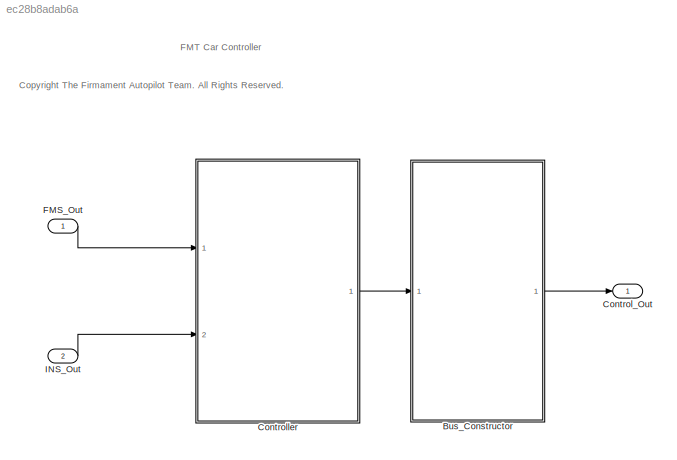
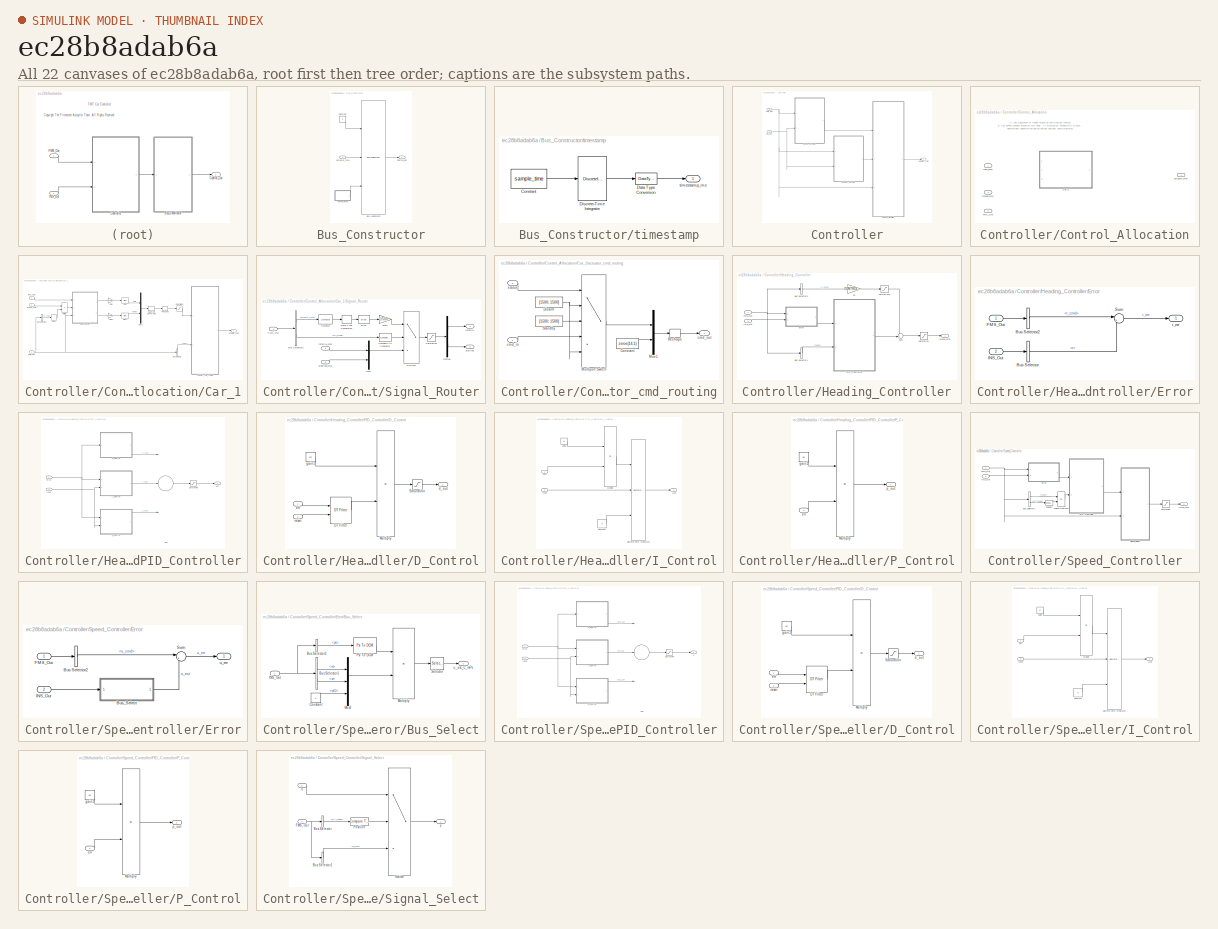
[diagram: thumbnail index - all 22 canvases of the model, root first then tree order]
MODEL slx_ec28b8adab6a
KIND model
CONFIG AbsTol = auto
CONFIG EnableMultiTasking = off
CONFIG FixedStep = control_dt
CONFIG MaxStep = auto
CONFIG MinStep = auto
CONFIG RelTol = 1e-3
CONFIG SampleTimeConstraint = Unconstrained
CONFIG Solver = FixedStepDiscrete
CONFIG SolverName = FixedStepDiscrete
CONFIG StartTime = 0.0
CONFIG StopTime = 10.0
BLOCK [SubSystem] Bus_Constructor
  Ports = [1, 1]
  RequestExecContextInheritance = off
BLOCK [BusAssignment] Bus_Constructor/Bus Assignment
  AssignedSignals = actuator_cmd,timestamp
  Ports = [3, 1]
BLOCK [Constant] Bus_Constructor/Constant
  OutDataTypeStr = Bus: Control_Out_Bus
  Value = 0
BLOCK [Outport] Bus_Constructor/Control_Out
  IconDisplay = Port number
BLOCK [Inport] Bus_Constructor/actuator_cmd
  IconDisplay = Port number
BLOCK [SubSystem] Bus_Constructor/timestamp
  Ports = [0, 1]
  RequestExecContextInheritance = off
BLOCK [Constant] Bus_Constructor/timestamp/Constant
  Value = sample_time
BLOCK [DataTypeConversion] Bus_Constructor/timestamp/Data Type Conversion
  OutDataTypeStr = uint32
  RndMeth = Floor
  SaturateOnIntegerOverflow = off
BLOCK [DiscreteIntegrator] Bus_Constructor/timestamp/Discrete-Time Integrator
  ICPrevOutput = DiscIntNeverNeededParam
  ICPrevScaledInput = DiscIntNeverNeededParam
  InitialConditionSetting = Auto
  IntegratorMethod = Accumulation: Forward Euler
  Ports = [1, 1]
  SampleTime = -1
BLOCK [Outport] Bus_Constructor/timestamp/timestamp_ms
  IconDisplay = Port number
BLOCK [Outport] Control_Out
  IconDisplay = Port number
  OutDataTypeStr = Bus: Control_Out_Bus
BLOCK [SubSystem] Controller
  Ports = [2, 1]
  RequestExecContextInheritance = off
BLOCK [SubSystem] Controller/Control_Allocation
  GeneratePreprocessorConditionals = on
  Ports = [3, 1]
  RequestExecContextInheritance = off
  Variant = on
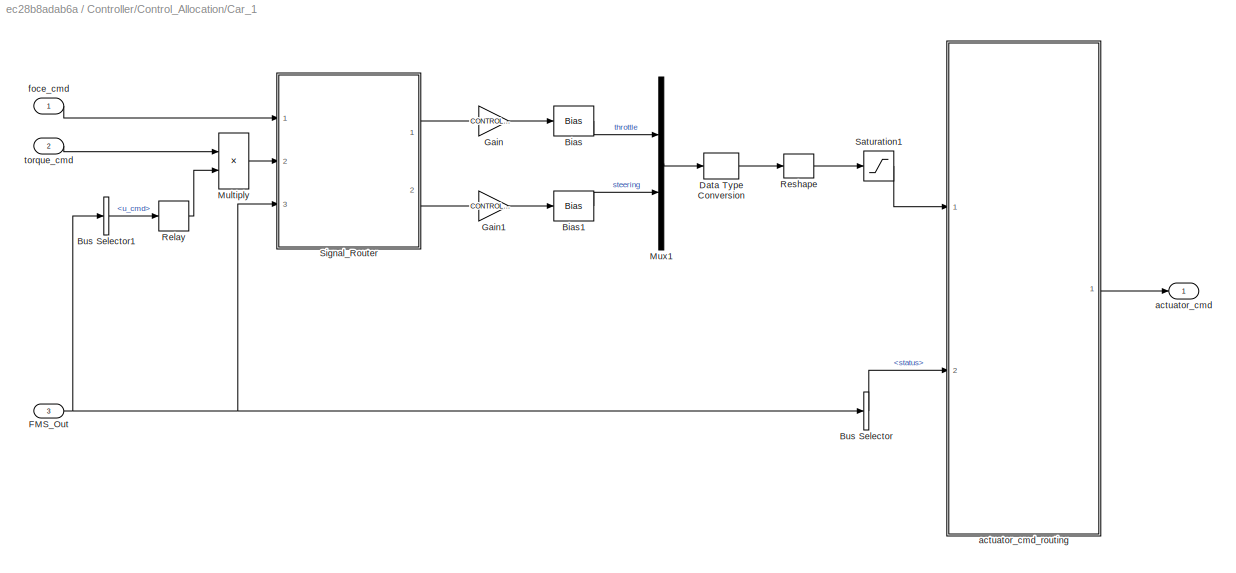
BLOCK [SubSystem] Controller/Control_Allocation/Car_1
  Ports = [3, 1]
  RequestExecContextInheritance = off
  TreatAsAtomicUnit = on
  VariantControl = AIRFRAME==1
BLOCK [Bias] Controller/Control_Allocation/Car_1/Bias
  Bias = CONTROL_PARAM.THROTTLE_BIAS
  SaturateOnIntegerOverflow = off
BLOCK [Bias] Controller/Control_Allocation/Car_1/Bias1
  Bias = CONTROL_PARAM.SERVO_BIAS
  SaturateOnIntegerOverflow = off
BLOCK [BusSelector] Controller/Control_Allocation/Car_1/Bus Selector
  OutputAsBus = off
  OutputSignals = status
  Ports = [1, 1]
BLOCK [BusSelector] Controller/Control_Allocation/Car_1/Bus Selector1
  OutputAsBus = off
  OutputSignals = u_cmd
  Ports = [1, 1]
BLOCK [DataTypeConversion] Controller/Control_Allocation/Car_1/Data Type Conversion
  OutDataTypeStr = uint16
  RndMeth = Floor
  SaturateOnIntegerOverflow = off
BLOCK [Inport] Controller/Control_Allocation/Car_1/FMS_Out
  IconDisplay = Port number
  Port = 3
BLOCK [Gain] Controller/Control_Allocation/Car_1/Gain
  Gain = CONTROL_PARAM.THROTTLE_SCALE
  OutDataTypeStr = single
  ParamDataTypeStr = Inherit: Inherit via internal rule
  SaturateOnIntegerOverflow = off
BLOCK [Gain] Controller/Control_Allocation/Car_1/Gain1
  Gain = CONTROL_PARAM.SERVO_SCALE
  OutDataTypeStr = single
  ParamDataTypeStr = Inherit: Inherit via internal rule
  SaturateOnIntegerOverflow = off
BLOCK [Product] Controller/Control_Allocation/Car_1/Multiply
  InputSameDT = off
  OutDataTypeStr = Inherit: Inherit via internal rule
  Ports = [2, 1]
  RndMeth = Floor
  SaturateOnIntegerOverflow = off
BLOCK [Mux] Controller/Control_Allocation/Car_1/Mux1
  DisplayOption = bar
  Inputs = 2
  Ports = [2, 1]
BLOCK [Relay] Controller/Control_Allocation/Car_1/Relay
  InputProcessing = Elements as channels (sample based)
  OffOutputValue = -1
  OffSwitchValue = -0.2
  OnSwitchValue = 0
BLOCK [Reshape] Controller/Control_Allocation/Car_1/Reshape
  OutputDimensionality = Column vector (2-D)
  Ports = [1, 1]
BLOCK [Saturate] Controller/Control_Allocation/Car_1/Saturation1
  InputPortMap = u0
  LowerLimit = 1000
  Ports = [1, 1]
  UpperLimit = 2000
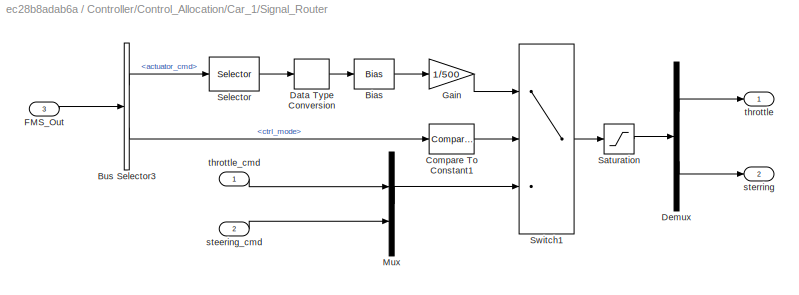
BLOCK [SubSystem] Controller/Control_Allocation/Car_1/Signal_Router
  Ports = [3, 2]
  RequestExecContextInheritance = off
BLOCK [Bias] Controller/Control_Allocation/Car_1/Signal_Router/Bias
  Bias = -1500
  SaturateOnIntegerOverflow = off
BLOCK [BusSelector] Controller/Control_Allocation/Car_1/Signal_Router/Bus Selector3
  OutputAsBus = off
  OutputSignals = actuator_cmd,ctrl_mode
  Ports = [1, 2]
BLOCK [Reference] Controller/Control_Allocation/Car_1/Signal_Router/Compare To Constant1  REF=simulink/Logic and Bit
Operations/Compare
To Constant
  Ports = [1, 1]
  SourceBlock = simulink/Logic and Bit\nOperations/Compare\nTo Constant
  SourceProductBaseCode = SL
  SourceProductName = Simulink
  SourceType = Compare To Constant
BLOCK [DataTypeConversion] Controller/Control_Allocation/Car_1/Signal_Router/Data Type Conversion
  OutDataTypeStr = single
  RndMeth = Floor
  SaturateOnIntegerOverflow = off
BLOCK [Demux] Controller/Control_Allocation/Car_1/Signal_Router/Demux
  DisplayOption = bar
  Outputs = 2
  Ports = [1, 2]
BLOCK [Inport] Controller/Control_Allocation/Car_1/Signal_Router/FMS_Out
  IconDisplay = Port number
  Port = 3
BLOCK [Gain] Controller/Control_Allocation/Car_1/Signal_Router/Gain
  Gain = 1/500
  OutDataTypeStr = Inherit: Inherit via internal rule
  ParamDataTypeStr = Inherit: Inherit via internal rule
  SaturateOnIntegerOverflow = off
BLOCK [Mux] Controller/Control_Allocation/Car_1/Signal_Router/Mux
  DisplayOption = bar
  Inputs = 2
  Ports = [2, 1]
BLOCK [Saturate] Controller/Control_Allocation/Car_1/Signal_Router/Saturation
  InputPortMap = u0
  LowerLimit = -1
  Ports = [1, 1]
  UpperLimit = 1
BLOCK [Selector] Controller/Control_Allocation/Car_1/Signal_Router/Selector
  IndexOptions = Index vector (dialog)
  Indices = [1 2]
  InputPortWidth = 16
  OutputSizes = 1
  Ports = [1, 1]
BLOCK [Switch] Controller/Control_Allocation/Car_1/Signal_Router/Switch1
  Criteria = u2 > Threshold
  InputSameDT = off
  SaturateOnIntegerOverflow = off
BLOCK [Inport] Controller/Control_Allocation/Car_1/Signal_Router/steering_cmd
  IconDisplay = Port number
  Port = 2
BLOCK [Outport] Controller/Control_Allocation/Car_1/Signal_Router/sterring
  IconDisplay = Port number
  Port = 2
BLOCK [Outport] Controller/Control_Allocation/Car_1/Signal_Router/throttle
  IconDisplay = Port number
BLOCK [Inport] Controller/Control_Allocation/Car_1/Signal_Router/throttle_cmd
  IconDisplay = Port number
BLOCK [Outport] Controller/Control_Allocation/Car_1/actuator_cmd
  IconDisplay = Port number
BLOCK [SubSystem] Controller/Control_Allocation/Car_1/actuator_cmd_routing
  Ports = [2, 1]
  RequestExecContextInheritance = off
BLOCK [Constant] Controller/Control_Allocation/Car_1/actuator_cmd_routing/Constant
  OutDataTypeStr = uint16
  Value = zeros(14,1)
  VectorParams1D = off
BLOCK [Constant] Controller/Control_Allocation/Car_1/actuator_cmd_routing/Disarm
  OutDataTypeStr = uint16
  Value = [1500; 1500]
  VectorParams1D = off
BLOCK [MultiPortSwitch] Controller/Control_Allocation/Car_1/actuator_cmd_routing/Multiport Switch
  DataPortForDefault = Additional data port
  DiagnosticForDefault = None
  InputSameDT = off
  Ports = [5, 1]
  SaturateOnIntegerOverflow = off
BLOCK [Mux] Controller/Control_Allocation/Car_1/actuator_cmd_routing/Mux1
  DisplayOption = bar
  Inputs = 2
  Ports = [2, 1]
BLOCK [Reshape] Controller/Control_Allocation/Car_1/actuator_cmd_routing/Reshape
  OutputDimensionality = Customize
  OutputDimensions = [16,1]
  Ports = [1, 1]
BLOCK [Constant] Controller/Control_Allocation/Car_1/actuator_cmd_routing/Standby
  OutDataTypeStr = uint16
  Value = [1500; 1500]
  VectorParams1D = off
BLOCK [Inport] Controller/Control_Allocation/Car_1/actuator_cmd_routing/cmd_in
  IconDisplay = Port number
BLOCK [Outport] Controller/Control_Allocation/Car_1/actuator_cmd_routing/cmd_out
  IconDisplay = Port number
BLOCK [Inport] Controller/Control_Allocation/Car_1/actuator_cmd_routing/status
  IconDisplay = Port number
  Port = 2
BLOCK [Inport] Controller/Control_Allocation/Car_1/foce_cmd
  IconDisplay = Port number
BLOCK [Inport] Controller/Control_Allocation/Car_1/torque_cmd
  IconDisplay = Port number
  Port = 2
BLOCK [Inport] Controller/Control_Allocation/FMS_Out
  IconDisplay = Port number
  Port = 3
BLOCK [Outport] Controller/Control_Allocation/actuator_cmd
  IconDisplay = Port number
BLOCK [Inport] Controller/Control_Allocation/foce_cmd
  IconDisplay = Port number
BLOCK [Inport] Controller/Control_Allocation/torque_cmd
  IconDisplay = Port number
  Port = 2
BLOCK [Inport] Controller/FMS_Out
  IconDisplay = Port number
BLOCK [SubSystem] Controller/Heading_Controller
  Ports = [2, 1]
  RequestExecContextInheritance = off
BLOCK [BusSelector] Controller/Heading_Controller/Bus Selector1
  OutputAsBus = off
  OutputSignals = reset
  Ports = [1, 1]
BLOCK [BusSelector] Controller/Heading_Controller/Bus Selector3
  OutputAsBus = off
  OutputSignals = r_cmd
  Ports = [1, 1]
BLOCK [SubSystem] Controller/Heading_Controller/Error
  Ports = [2, 1]
  RequestExecContextInheritance = off
BLOCK [BusSelector] Controller/Heading_Controller/Error/Bus Selector
  OutputAsBus = off
  OutputSignals = r
  Ports = [1, 1]
BLOCK [BusSelector] Controller/Heading_Controller/Error/Bus Selector2
  OutputAsBus = off
  OutputSignals = r_cmd
  Ports = [1, 1]
BLOCK [Inport] Controller/Heading_Controller/Error/FMS_Out
  IconDisplay = Port number
BLOCK [Inport] Controller/Heading_Controller/Error/INS_Out
  IconDisplay = Port number
  Port = 2
BLOCK [Sum] Controller/Heading_Controller/Error/Sum
  IconShape = round
  InputSameDT = off
  Inputs = |+-
  OutDataTypeStr = Inherit: Inherit via internal rule
  Ports = [2, 1]
  SaturateOnIntegerOverflow = off
BLOCK [Outport] Controller/Heading_Controller/Error/r_err
  IconDisplay = Port number
BLOCK [Gain] Controller/Heading_Controller/FF
  Gain = CONTROL_PARAM.R_FF
  OutDataTypeStr = Inherit: Inherit via internal rule
  ParamDataTypeStr = Inherit: Inherit via internal rule
  SaturateOnIntegerOverflow = off
BLOCK [Inport] Controller/Heading_Controller/FMS_Out
  IconDisplay = Port number
BLOCK [Inport] Controller/Heading_Controller/INS_Out
  IconDisplay = Port number
  Port = 2
BLOCK [SubSystem] Controller/Heading_Controller/PID_Controller
  Ports = [2, 1]
  RequestExecContextInheritance = off
BLOCK [Sum] Controller/Heading_Controller/PID_Controller/Add
  AccumDataTypeStr = Inherit: Same as first input
  InputSameDT = off
  Inputs = +++
  OutDataTypeStr = Inherit: Inherit via internal rule
  Ports = [3, 1]
  SaturateOnIntegerOverflow = off
BLOCK [SubSystem] Controller/Heading_Controller/PID_Controller/D_Control
  Ports = [2, 1]
  RequestExecContextInheritance = off
BLOCK [Reference] Controller/Heading_Controller/PID_Controller/D_Control/DT Filter  REF=FMT_Model_Lib/Filter/DT Filter
  Ports = [2, 1]
  SourceBlock = FMT_Model_Lib/Filter/DT Filter
  SourceProductName = FMT Toolbox
  SourceType = Derivative Tracking Filter
BLOCK [Product] Controller/Heading_Controller/PID_Controller/D_Control/Multiply
  InputSameDT = off
  Ports = [2, 1]
  RndMeth = Floor
  SaturateOnIntegerOverflow = off
BLOCK [Saturate] Controller/Heading_Controller/PID_Controller/D_Control/Saturation
  InputPortMap = u0
  LowerLimit = min_d
  Ports = [1, 1]
  UpperLimit = max_d
BLOCK [Outport] Controller/Heading_Controller/PID_Controller/D_Control/d_out
  IconDisplay = Port number
BLOCK [Inport] Controller/Heading_Controller/PID_Controller/D_Control/err
  IconDisplay = Port number
BLOCK [Constant] Controller/Heading_Controller/PID_Controller/D_Control/gain1
  OutDataTypeStr = single
  Value = kd
BLOCK [Inport] Controller/Heading_Controller/PID_Controller/D_Control/reset
  IconDisplay = Port number
  Port = 2
BLOCK [SubSystem] Controller/Heading_Controller/PID_Controller/I_Control
  Ports = [2, 1]
  RequestExecContextInheritance = off
BLOCK [Constant] Controller/Heading_Controller/PID_Controller/I_Control/Constant
  OutDataTypeStr = single
  Value = 0
BLOCK [DiscreteIntegrator] Controller/Heading_Controller/PID_Controller/I_Control/Discrete-Time Integrator
  ExternalReset = level
  ICPrevOutput = DiscIntNeverNeededParam
  ICPrevScaledInput = DiscIntNeverNeededParam
  InitialConditionSetting = Auto
  InitialConditionSource = external
  LimitOutput = on
  LowerSaturationLimit = min_i
  Ports = [3, 1]
  SampleTime = -1
  UpperSaturationLimit = max_i
BLOCK [Product] Controller/Heading_Controller/PID_Controller/I_Control/Multiply
  InputSameDT = off
  Ports = [2, 1]
  RndMeth = Floor
  SaturateOnIntegerOverflow = off
BLOCK [Inport] Controller/Heading_Controller/PID_Controller/I_Control/err
  IconDisplay = Port number
BLOCK [Constant] Controller/Heading_Controller/PID_Controller/I_Control/gain1
  OutDataTypeStr = single
  Value = ki
BLOCK [Outport] Controller/Heading_Controller/PID_Controller/I_Control/i_out
  IconDisplay = Port number
BLOCK [Inport] Controller/Heading_Controller/PID_Controller/I_Control/reset
  IconDisplay = Port number
  Port = 2
BLOCK [SubSystem] Controller/Heading_Controller/PID_Controller/P_Control
  Ports = [1, 1]
  RequestExecContextInheritance = off
BLOCK [Product] Controller/Heading_Controller/PID_Controller/P_Control/Multiply
  InputSameDT = off
  Ports = [2, 1]
  RndMeth = Floor
  SaturateOnIntegerOverflow = off
BLOCK [Inport] Controller/Heading_Controller/PID_Controller/P_Control/err
  IconDisplay = Port number
BLOCK [Constant] Controller/Heading_Controller/PID_Controller/P_Control/gain1
  OutDataTypeStr = single
  Value = kp
BLOCK [Outport] Controller/Heading_Controller/PID_Controller/P_Control/p_out
  IconDisplay = Port number
BLOCK [Saturate] Controller/Heading_Controller/PID_Controller/Saturation
  InputPortMap = u0
  LowerLimit = -1
  Ports = [1, 1]
  UpperLimit = 1
BLOCK [Inport] Controller/Heading_Controller/PID_Controller/error
  IconDisplay = Port number
BLOCK [Outport] Controller/Heading_Controller/PID_Controller/out
  IconDisplay = Port number
BLOCK [Inport] Controller/Heading_Controller/PID_Controller/reset
  IconDisplay = Port number
  Port = 2
BLOCK [Saturate] Controller/Heading_Controller/Saturation
  InputPortMap = u0
  LowerLimit = -1
  Ports = [1, 1]
  UpperLimit = 1
BLOCK [Saturate] Controller/Heading_Controller/Saturation1
  InputPortMap = u0
  LowerLimit = -0.9
  Ports = [1, 1]
  UpperLimit = 0.9
BLOCK [Sum] Controller/Heading_Controller/Sum
  IconShape = round
  InputSameDT = off
  Inputs = ++|
  OutDataTypeStr = Inherit: Inherit via internal rule
  Ports = [2, 1]
  SaturateOnIntegerOverflow = off
BLOCK [Outport] Controller/Heading_Controller/torque_cmd
  IconDisplay = Port number
BLOCK [Inport] Controller/INS_Out
  IconDisplay = Port number
  Port = 2
BLOCK [SubSystem] Controller/Speed_Controller
  Ports = [2, 1]
  RequestExecContextInheritance = off
BLOCK [BusSelector] Controller/Speed_Controller/Bus Selector1
  OutputAsBus = off
  OutputSignals = reset,ctrl_mode
  Ports = [1, 2]
BLOCK [SubSystem] Controller/Speed_Controller/Error
  Ports = [2, 1]
  RequestExecContextInheritance = off
BLOCK [BusSelector] Controller/Speed_Controller/Error/Bus Selector2
  OutputAsBus = off
  OutputSignals = u_cmd
  Ports = [1, 1]
BLOCK [SubSystem] Controller/Speed_Controller/Error/Bus_Select
  Ports = [1, 1]
  RequestExecContextInheritance = off
BLOCK [BusSelector] Controller/Speed_Controller/Error/Bus_Select/Bus Selector1
  OutputAsBus = off
  OutputSignals = vn,ve
  Ports = [1, 2]
BLOCK [BusSelector] Controller/Speed_Controller/Error/Bus_Select/Bus Selector2
  OutputAsBus = off
  OutputSignals = psi
  Ports = [1, 1]
BLOCK [Constant] Controller/Speed_Controller/Error/Bus_Select/Constant
  OutDataTypeStr = single
  Value = 0
BLOCK [Inport] Controller/Speed_Controller/Error/Bus_Select/INS_Out
  IconDisplay = Port number
BLOCK [Product] Controller/Speed_Controller/Error/Bus_Select/Multiply
  InputSameDT = off
  Multiplication = Matrix(*)
  OutDataTypeStr = Inherit: Inherit via internal rule
  Ports = [2, 1]
  RndMeth = Floor
  SaturateOnIntegerOverflow = off
BLOCK [Mux] Controller/Speed_Controller/Error/Bus_Select/Mux2
  DisplayOption = bar
  Inputs = 3
  Ports = [3, 1]
BLOCK [Reference] Controller/Speed_Controller/Error/Bus_Select/Psi To DCM  REF=FMT_Model_Lib/Transformation/Psi To DCM
  Ports = [1, 1]
  SourceBlock = FMT_Model_Lib/Transformation/Psi To DCM
  SourceProductName = FMT Toolbox
  SourceType = Rotation Matrix X-Axis
BLOCK [Selector] Controller/Speed_Controller/Error/Bus_Select/Selector
  IndexOptions = Index vector (dialog)
  Indices = 1
  InputPortWidth = 3
  OutputSizes = 1
  Ports = [1, 1]
BLOCK [Outport] Controller/Speed_Controller/Error/Bus_Select/u_est_C_mPs
  IconDisplay = Port number
BLOCK [Inport] Controller/Speed_Controller/Error/FMS_Out
  IconDisplay = Port number
BLOCK [Inport] Controller/Speed_Controller/Error/INS_Out
  IconDisplay = Port number
  Port = 2
BLOCK [Sum] Controller/Speed_Controller/Error/Sum
  IconShape = round
  InputSameDT = off
  Inputs = |+-
  OutDataTypeStr = Inherit: Inherit via internal rule
  Ports = [2, 1]
  SaturateOnIntegerOverflow = off
BLOCK [Outport] Controller/Speed_Controller/Error/u_err
  IconDisplay = Port number
BLOCK [Inport] Controller/Speed_Controller/FMS_Out
  IconDisplay = Port number
BLOCK [Inport] Controller/Speed_Controller/INS_Out
  IconDisplay = Port number
  Port = 2
BLOCK [Logic] Controller/Speed_Controller/Logical Operator
  AllPortsSameDT = off
  Operator = OR
  OutDataTypeStr = boolean
  Ports = [2, 1]
BLOCK [SubSystem] Controller/Speed_Controller/PID_Controller
  Ports = [2, 1]
  RequestExecContextInheritance = off
BLOCK [Sum] Controller/Speed_Controller/PID_Controller/Add
  AccumDataTypeStr = Inherit: Same as first input
  InputSameDT = off
  Inputs = +++
  OutDataTypeStr = Inherit: Inherit via internal rule
  Ports = [3, 1]
  SaturateOnIntegerOverflow = off
BLOCK [SubSystem] Controller/Speed_Controller/PID_Controller/D_Control
  Ports = [2, 1]
  RequestExecContextInheritance = off
BLOCK [Reference] Controller/Speed_Controller/PID_Controller/D_Control/DT Filter  REF=FMT_Model_Lib/Filter/DT Filter
  Ports = [2, 1]
  SourceBlock = FMT_Model_Lib/Filter/DT Filter
  SourceProductName = FMT Toolbox
  SourceType = Derivative Tracking Filter
BLOCK [Product] Controller/Speed_Controller/PID_Controller/D_Control/Multiply
  InputSameDT = off
  Ports = [2, 1]
  RndMeth = Floor
  SaturateOnIntegerOverflow = off
BLOCK [Saturate] Controller/Speed_Controller/PID_Controller/D_Control/Saturation
  InputPortMap = u0
  LowerLimit = min_d
  Ports = [1, 1]
  UpperLimit = max_d
BLOCK [Outport] Controller/Speed_Controller/PID_Controller/D_Control/d_out
  IconDisplay = Port number
BLOCK [Inport] Controller/Speed_Controller/PID_Controller/D_Control/err
  IconDisplay = Port number
BLOCK [Constant] Controller/Speed_Controller/PID_Controller/D_Control/gain1
  OutDataTypeStr = single
  Value = kd
BLOCK [Inport] Controller/Speed_Controller/PID_Controller/D_Control/reset
  IconDisplay = Port number
  Port = 2
BLOCK [SubSystem] Controller/Speed_Controller/PID_Controller/I_Control
  Ports = [2, 1]
  RequestExecContextInheritance = off
BLOCK [Constant] Controller/Speed_Controller/PID_Controller/I_Control/Constant
  OutDataTypeStr = single
  Value = 0
BLOCK [DiscreteIntegrator] Controller/Speed_Controller/PID_Controller/I_Control/Discrete-Time Integrator
  ExternalReset = level
  ICPrevOutput = DiscIntNeverNeededParam
  ICPrevScaledInput = DiscIntNeverNeededParam
  InitialConditionSetting = Auto
  InitialConditionSource = external
  LimitOutput = on
  LowerSaturationLimit = min_i
  Ports = [3, 1]
  SampleTime = -1
  UpperSaturationLimit = max_i
BLOCK [Product] Controller/Speed_Controller/PID_Controller/I_Control/Multiply
  InputSameDT = off
  Ports = [2, 1]
  RndMeth = Floor
  SaturateOnIntegerOverflow = off
BLOCK [Inport] Controller/Speed_Controller/PID_Controller/I_Control/err
  IconDisplay = Port number
BLOCK [Constant] Controller/Speed_Controller/PID_Controller/I_Control/gain1
  OutDataTypeStr = single
  Value = ki
BLOCK [Outport] Controller/Speed_Controller/PID_Controller/I_Control/i_out
  IconDisplay = Port number
BLOCK [Inport] Controller/Speed_Controller/PID_Controller/I_Control/reset
  IconDisplay = Port number
  Port = 2
BLOCK [SubSystem] Controller/Speed_Controller/PID_Controller/P_Control
  Ports = [1, 1]
  RequestExecContextInheritance = off
BLOCK [Product] Controller/Speed_Controller/PID_Controller/P_Control/Multiply
  InputSameDT = off
  Ports = [2, 1]
  RndMeth = Floor
  SaturateOnIntegerOverflow = off
BLOCK [Inport] Controller/Speed_Controller/PID_Controller/P_Control/err
  IconDisplay = Port number
BLOCK [Constant] Controller/Speed_Controller/PID_Controller/P_Control/gain1
  OutDataTypeStr = single
  Value = kp
BLOCK [Outport] Controller/Speed_Controller/PID_Controller/P_Control/p_out
  IconDisplay = Port number
BLOCK [Saturate] Controller/Speed_Controller/PID_Controller/Saturation
  InputPortMap = u0
  LowerLimit = -1
  Ports = [1, 1]
  UpperLimit = 1
BLOCK [Inport] Controller/Speed_Controller/PID_Controller/error
  IconDisplay = Port number
BLOCK [Inport] Controller/Speed_Controller/PID_Controller/reset
  IconDisplay = Port number
  Port = 2
BLOCK [Outport] Controller/Speed_Controller/PID_Controller/u
  IconDisplay = Port number
BLOCK [Reference] Controller/Speed_Controller/Position  REF=simulink/Logic and Bit
Operations/Compare
To Constant
  Ports = [1, 1]
  SourceBlock = simulink/Logic and Bit\nOperations/Compare\nTo Constant
  SourceProductBaseCode = SL
  SourceProductName = Simulink
  SourceType = Compare To Constant
BLOCK [Saturate] Controller/Speed_Controller/Saturation
  InputPortMap = u0
  LowerLimit = -1
  Ports = [1, 1]
  UpperLimit = 1
BLOCK [SubSystem] Controller/Speed_Controller/Signal_Select
  Ports = [2, 1]
  RequestExecContextInheritance = off
BLOCK [BusSelector] Controller/Speed_Controller/Signal_Select/Bus Selector
  OutputAsBus = off
  OutputSignals = ctrl_mode
  Ports = [1, 1]
BLOCK [BusSelector] Controller/Speed_Controller/Signal_Select/Bus Selector1
  OutputAsBus = off
  OutputSignals = u_cmd
  Ports = [1, 1]
BLOCK [Inport] Controller/Speed_Controller/Signal_Select/FMS_Out
  IconDisplay = Port number
  Port = 2
BLOCK [Reference] Controller/Speed_Controller/Signal_Select/Position  REF=simulink/Logic and Bit
Operations/Compare
To Constant
  Ports = [1, 1]
  SourceBlock = simulink/Logic and Bit\nOperations/Compare\nTo Constant
  SourceProductBaseCode = SL
  SourceProductName = Simulink
  SourceType = Compare To Constant
BLOCK [Switch] Controller/Speed_Controller/Signal_Select/Switch
  Criteria = u2 > Threshold
  InputSameDT = off
  SaturateOnIntegerOverflow = off
BLOCK [Inport] Controller/Speed_Controller/Signal_Select/u
  IconDisplay = Port number
BLOCK [Outport] Controller/Speed_Controller/Signal_Select/y
  IconDisplay = Port number
BLOCK [Outport] Controller/Speed_Controller/force_cmd
  IconDisplay = Port number
BLOCK [Outport] Controller/actuator_cmd
  IconDisplay = Port number
BLOCK [Inport] FMS_Out
  IconDisplay = Port number
  OutDataTypeStr = Bus: FMS_Out_Bus
BLOCK [Inport] INS_Out
  IconDisplay = Port number
  OutDataTypeStr = Bus: INS_Out_Bus
  Port = 2
ANNOTATION (root): <copyright redacted>
ANNOTATION (root): FMT Car Controller
ANNOTATION Controller/Control_Allocation: 1) Add Subsystem or Model blocks as valid variant choices. 2) You cannot connect blocks at this level. At simulation, connectivity is automatically determined, based on the active variant and port name matching.
LINE Bus_Constructor/Bus Assignment:1 -> Bus_Constructor/Control_Out:1
LINE Bus_Constructor/Constant:1 -> Bus_Constructor/Bus Assignment:1
LINE Bus_Constructor/actuator_cmd:1 -> Bus_Constructor/Bus Assignment:2
LINE Bus_Constructor/timestamp/Constant:1 -> Bus_Constructor/timestamp/Discrete-Time Integrator:1
LINE Bus_Constructor/timestamp/Data Type Conversion:1 -> Bus_Constructor/timestamp/timestamp_ms:1
LINE Bus_Constructor/timestamp/Discrete-Time Integrator:1 -> Bus_Constructor/timestamp/Data Type Conversion:1
LINE Bus_Constructor/timestamp:1 -> Bus_Constructor/Bus Assignment:3
LINE Bus_Constructor:1 -> Control_Out:1
LINE Controller/Control_Allocation/Car_1/Bias1:1 -> Controller/Control_Allocation/Car_1/Mux1:2
LINE Controller/Control_Allocation/Car_1/Bias:1 -> Controller/Control_Allocation/Car_1/Mux1:1
LINE Controller/Control_Allocation/Car_1/Bus Selector1:1 -> Controller/Control_Allocation/Car_1/Relay:1
LINE Controller/Control_Allocation/Car_1/Bus Selector:1 -> Controller/Control_Allocation/Car_1/actuator_cmd_routing:2
LINE Controller/Control_Allocation/Car_1/Data Type Conversion:1 -> Controller/Control_Allocation/Car_1/Reshape:1
NET Controller/Control_Allocation/Car_1/FMS_Out:1 -> Controller/Control_Allocation/Car_1/Bus Selector1:1, Controller/Control_Allocation/Car_1/Bus Selector:1, Controller/Control_Allocation/Car_1/Signal_Router:3
LINE Controller/Control_Allocation/Car_1/Gain1:1 -> Controller/Control_Allocation/Car_1/Bias1:1
LINE Controller/Control_Allocation/Car_1/Gain:1 -> Controller/Control_Allocation/Car_1/Bias:1
LINE Controller/Control_Allocation/Car_1/Multiply:1 -> Controller/Control_Allocation/Car_1/Signal_Router:2
LINE Controller/Control_Allocation/Car_1/Mux1:1 -> Controller/Control_Allocation/Car_1/Data Type Conversion:1
LINE Controller/Control_Allocation/Car_1/Relay:1 -> Controller/Control_Allocation/Car_1/Multiply:2
LINE Controller/Control_Allocation/Car_1/Reshape:1 -> Controller/Control_Allocation/Car_1/Saturation1:1
LINE Controller/Control_Allocation/Car_1/Saturation1:1 -> Controller/Control_Allocation/Car_1/actuator_cmd_routing:1
LINE Controller/Control_Allocation/Car_1/Signal_Router/Bias:1 -> Controller/Control_Allocation/Car_1/Signal_Router/Gain:1
LINE Controller/Control_Allocation/Car_1/Signal_Router/Bus Selector3:1 -> Controller/Control_Allocation/Car_1/Signal_Router/Selector:1
LINE Controller/Control_Allocation/Car_1/Signal_Router/Bus Selector3:2 -> Controller/Control_Allocation/Car_1/Signal_Router/Compare To Constant1:1
LINE Controller/Control_Allocation/Car_1/Signal_Router/Compare To Constant1:1 -> Controller/Control_Allocation/Car_1/Signal_Router/Switch1:2
LINE Controller/Control_Allocation/Car_1/Signal_Router/Data Type Conversion:1 -> Controller/Control_Allocation/Car_1/Signal_Router/Bias:1
LINE Controller/Control_Allocation/Car_1/Signal_Router/Demux:1 -> Controller/Control_Allocation/Car_1/Signal_Router/throttle:1
LINE Controller/Control_Allocation/Car_1/Signal_Router/Demux:2 -> Controller/Control_Allocation/Car_1/Signal_Router/sterring:1
LINE Controller/Control_Allocation/Car_1/Signal_Router/FMS_Out:1 -> Controller/Control_Allocation/Car_1/Signal_Router/Bus Selector3:1
LINE Controller/Control_Allocation/Car_1/Signal_Router/Gain:1 -> Controller/Control_Allocation/Car_1/Signal_Router/Switch1:1
LINE Controller/Control_Allocation/Car_1/Signal_Router/Mux:1 -> Controller/Control_Allocation/Car_1/Signal_Router/Switch1:3
LINE Controller/Control_Allocation/Car_1/Signal_Router/Saturation:1 -> Controller/Control_Allocation/Car_1/Signal_Router/Demux:1
LINE Controller/Control_Allocation/Car_1/Signal_Router/Selector:1 -> Controller/Control_Allocation/Car_1/Signal_Router/Data Type Conversion:1
LINE Controller/Control_Allocation/Car_1/Signal_Router/Switch1:1 -> Controller/Control_Allocation/Car_1/Signal_Router/Saturation:1
LINE Controller/Control_Allocation/Car_1/Signal_Router/steering_cmd:1 -> Controller/Control_Allocation/Car_1/Signal_Router/Mux:2
LINE Controller/Control_Allocation/Car_1/Signal_Router/throttle_cmd:1 -> Controller/Control_Allocation/Car_1/Signal_Router/Mux:1
LINE Controller/Control_Allocation/Car_1/Signal_Router:1 -> Controller/Control_Allocation/Car_1/Gain:1
LINE Controller/Control_Allocation/Car_1/Signal_Router:2 -> Controller/Control_Allocation/Car_1/Gain1:1
LINE Controller/Control_Allocation/Car_1/actuator_cmd_routing/Constant:1 -> Controller/Control_Allocation/Car_1/actuator_cmd_routing/Mux1:2
NET Controller/Control_Allocation/Car_1/actuator_cmd_routing/Disarm:1 -> Controller/Control_Allocation/Car_1/actuator_cmd_routing/Multiport Switch:2, Controller/Control_Allocation/Car_1/actuator_cmd_routing/Multiport Switch:5
LINE Controller/Control_Allocation/Car_1/actuator_cmd_routing/Multiport Switch:1 -> Controller/Control_Allocation/Car_1/actuator_cmd_routing/Mux1:1
LINE Controller/Control_Allocation/Car_1/actuator_cmd_routing/Mux1:1 -> Controller/Control_Allocation/Car_1/actuator_cmd_routing/Reshape:1
LINE Controller/Control_Allocation/Car_1/actuator_cmd_routing/Reshape:1 -> Controller/Control_Allocation/Car_1/actuator_cmd_routing/cmd_out:1
LINE Controller/Control_Allocation/Car_1/actuator_cmd_routing/Standby:1 -> Controller/Control_Allocation/Car_1/actuator_cmd_routing/Multiport Switch:3
LINE Controller/Control_Allocation/Car_1/actuator_cmd_routing/cmd_in:1 -> Controller/Control_Allocation/Car_1/actuator_cmd_routing/Multiport Switch:4
LINE Controller/Control_Allocation/Car_1/actuator_cmd_routing/status:1 -> Controller/Control_Allocation/Car_1/actuator_cmd_routing/Multiport Switch:1
LINE Controller/Control_Allocation/Car_1/actuator_cmd_routing:1 -> Controller/Control_Allocation/Car_1/actuator_cmd:1
LINE Controller/Control_Allocation/Car_1/foce_cmd:1 -> Controller/Control_Allocation/Car_1/Signal_Router:1
LINE Controller/Control_Allocation/Car_1/torque_cmd:1 -> Controller/Control_Allocation/Car_1/Multiply:1
LINE Controller/Control_Allocation:1 -> Controller/actuator_cmd:1
NET Controller/FMS_Out:1 -> Controller/Control_Allocation:3, Controller/Heading_Controller:1, Controller/Speed_Controller:1
LINE Controller/Heading_Controller/Bus Selector1:1 -> Controller/Heading_Controller/PID_Controller:2
LINE Controller/Heading_Controller/Bus Selector3:1 -> Controller/Heading_Controller/FF:1
LINE Controller/Heading_Controller/Error/Bus Selector2:1 -> Controller/Heading_Controller/Error/Sum:1
LINE Controller/Heading_Controller/Error/Bus Selector:1 -> Controller/Heading_Controller/Error/Sum:2
LINE Controller/Heading_Controller/Error/FMS_Out:1 -> Controller/Heading_Controller/Error/Bus Selector2:1
LINE Controller/Heading_Controller/Error/INS_Out:1 -> Controller/Heading_Controller/Error/Bus Selector:1
LINE Controller/Heading_Controller/Error/Sum:1 -> Controller/Heading_Controller/Error/r_err:1
LINE Controller/Heading_Controller/Error:1 -> Controller/Heading_Controller/PID_Controller:1
LINE Controller/Heading_Controller/FF:1 -> Controller/Heading_Controller/Saturation1:1
NET Controller/Heading_Controller/FMS_Out:1 -> Controller/Heading_Controller/Bus Selector1:1, Controller/Heading_Controller/Bus Selector3:1, Controller/Heading_Controller/Error:1
LINE Controller/Heading_Controller/INS_Out:1 -> Controller/Heading_Controller/Error:2
LINE Controller/Heading_Controller/PID_Controller/Add:1 -> Controller/Heading_Controller/PID_Controller/Saturation:1
LINE Controller/Heading_Controller/PID_Controller/D_Control/DT Filter:1 -> Controller/Heading_Controller/PID_Controller/D_Control/Multiply:2
LINE Controller/Heading_Controller/PID_Controller/D_Control/Multiply:1 -> Controller/Heading_Controller/PID_Controller/D_Control/Saturation:1
LINE Controller/Heading_Controller/PID_Controller/D_Control/Saturation:1 -> Controller/Heading_Controller/PID_Controller/D_Control/d_out:1
LINE Controller/Heading_Controller/PID_Controller/D_Control/err:1 -> Controller/Heading_Controller/PID_Controller/D_Control/DT Filter:1
LINE Controller/Heading_Controller/PID_Controller/D_Control/gain1:1 -> Controller/Heading_Controller/PID_Controller/D_Control/Multiply:1
LINE Controller/Heading_Controller/PID_Controller/D_Control/reset:1 -> Controller/Heading_Controller/PID_Controller/D_Control/DT Filter:2
LINE Controller/Heading_Controller/PID_Controller/D_Control:1 -> Controller/Heading_Controller/PID_Controller/Add:3
LINE Controller/Heading_Controller/PID_Controller/I_Control/Constant:1 -> Controller/Heading_Controller/PID_Controller/I_Control/Discrete-Time Integrator:3
LINE Controller/Heading_Controller/PID_Controller/I_Control/Discrete-Time Integrator:1 -> Controller/Heading_Controller/PID_Controller/I_Control/i_out:1
LINE Controller/Heading_Controller/PID_Controller/I_Control/Multiply:1 -> Controller/Heading_Controller/PID_Controller/I_Control/Discrete-Time Integrator:1
LINE Controller/Heading_Controller/PID_Controller/I_Control/err:1 -> Controller/Heading_Controller/PID_Controller/I_Control/Multiply:2
LINE Controller/Heading_Controller/PID_Controller/I_Control/gain1:1 -> Controller/Heading_Controller/PID_Controller/I_Control/Multiply:1
LINE Controller/Heading_Controller/PID_Controller/I_Control/reset:1 -> Controller/Heading_Controller/PID_Controller/I_Control/Discrete-Time Integrator:2
LINE Controller/Heading_Controller/PID_Controller/I_Control:1 -> Controller/Heading_Controller/PID_Controller/Add:2
LINE Controller/Heading_Controller/PID_Controller/P_Control/Multiply:1 -> Controller/Heading_Controller/PID_Controller/P_Control/p_out:1
LINE Controller/Heading_Controller/PID_Controller/P_Control/err:1 -> Controller/Heading_Controller/PID_Controller/P_Control/Multiply:2
LINE Controller/Heading_Controller/PID_Controller/P_Control/gain1:1 -> Controller/Heading_Controller/PID_Controller/P_Control/Multiply:1
LINE Controller/Heading_Controller/PID_Controller/P_Control:1 -> Controller/Heading_Controller/PID_Controller/Add:1
LINE Controller/Heading_Controller/PID_Controller/Saturation:1 -> Controller/Heading_Controller/PID_Controller/out:1
NET Controller/Heading_Controller/PID_Controller/error:1 -> Controller/Heading_Controller/PID_Controller/D_Control:1, Controller/Heading_Controller/PID_Controller/I_Control:1, Controller/Heading_Controller/PID_Controller/P_Control:1
NET Controller/Heading_Controller/PID_Controller/reset:1 -> Controller/Heading_Controller/PID_Controller/D_Control:2, Controller/Heading_Controller/PID_Controller/I_Control:2
LINE Controller/Heading_Controller/PID_Controller:1 -> Controller/Heading_Controller/Sum:2
LINE Controller/Heading_Controller/Saturation1:1 -> Controller/Heading_Controller/Sum:1
LINE Controller/Heading_Controller/Saturation:1 -> Controller/Heading_Controller/torque_cmd:1
LINE Controller/Heading_Controller/Sum:1 -> Controller/Heading_Controller/Saturation:1
LINE Controller/Heading_Controller:1 -> Controller/Control_Allocation:2
NET Controller/INS_Out:1 -> Controller/Heading_Controller:2, Controller/Speed_Controller:2
LINE Controller/Speed_Controller/Bus Selector1:1 -> Controller/Speed_Controller/Logical Operator:1
LINE Controller/Speed_Controller/Bus Selector1:2 -> Controller/Speed_Controller/Position:1
LINE Controller/Speed_Controller/Error/Bus Selector2:1 -> Controller/Speed_Controller/Error/Sum:1
LINE Controller/Speed_Controller/Error/Bus_Select/Bus Selector1:1 -> Controller/Speed_Controller/Error/Bus_Select/Mux2:1
LINE Controller/Speed_Controller/Error/Bus_Select/Bus Selector1:2 -> Controller/Speed_Controller/Error/Bus_Select/Mux2:2
LINE Controller/Speed_Controller/Error/Bus_Select/Bus Selector2:1 -> Controller/Speed_Controller/Error/Bus_Select/Psi To DCM:1
LINE Controller/Speed_Controller/Error/Bus_Select/Constant:1 -> Controller/Speed_Controller/Error/Bus_Select/Mux2:3
NET Controller/Speed_Controller/Error/Bus_Select/INS_Out:1 -> Controller/Speed_Controller/Error/Bus_Select/Bus Selector1:1, Controller/Speed_Controller/Error/Bus_Select/Bus Selector2:1
LINE Controller/Speed_Controller/Error/Bus_Select/Multiply:1 -> Controller/Speed_Controller/Error/Bus_Select/Selector:1
LINE Controller/Speed_Controller/Error/Bus_Select/Mux2:1 -> Controller/Speed_Controller/Error/Bus_Select/Multiply:2
LINE Controller/Speed_Controller/Error/Bus_Select/Psi To DCM:1 -> Controller/Speed_Controller/Error/Bus_Select/Multiply:1
LINE Controller/Speed_Controller/Error/Bus_Select/Selector:1 -> Controller/Speed_Controller/Error/Bus_Select/u_est_C_mPs:1
LINE Controller/Speed_Controller/Error/Bus_Select:1 -> Controller/Speed_Controller/Error/Sum:2
LINE Controller/Speed_Controller/Error/FMS_Out:1 -> Controller/Speed_Controller/Error/Bus Selector2:1
LINE Controller/Speed_Controller/Error/INS_Out:1 -> Controller/Speed_Controller/Error/Bus_Select:1
LINE Controller/Speed_Controller/Error/Sum:1 -> Controller/Speed_Controller/Error/u_err:1
LINE Controller/Speed_Controller/Error:1 -> Controller/Speed_Controller/PID_Controller:1
NET Controller/Speed_Controller/FMS_Out:1 -> Controller/Speed_Controller/Bus Selector1:1, Controller/Speed_Controller/Error:1, Controller/Speed_Controller/Signal_Select:2
LINE Controller/Speed_Controller/INS_Out:1 -> Controller/Speed_Controller/Error:2
LINE Controller/Speed_Controller/Logical Operator:1 -> Controller/Speed_Controller/PID_Controller:2
LINE Controller/Speed_Controller/PID_Controller/Add:1 -> Controller/Speed_Controller/PID_Controller/Saturation:1
LINE Controller/Speed_Controller/PID_Controller/D_Control/DT Filter:1 -> Controller/Speed_Controller/PID_Controller/D_Control/Multiply:2
LINE Controller/Speed_Controller/PID_Controller/D_Control/Multiply:1 -> Controller/Speed_Controller/PID_Controller/D_Control/Saturation:1
LINE Controller/Speed_Controller/PID_Controller/D_Control/Saturation:1 -> Controller/Speed_Controller/PID_Controller/D_Control/d_out:1
LINE Controller/Speed_Controller/PID_Controller/D_Control/err:1 -> Controller/Speed_Controller/PID_Controller/D_Control/DT Filter:1
LINE Controller/Speed_Controller/PID_Controller/D_Control/gain1:1 -> Controller/Speed_Controller/PID_Controller/D_Control/Multiply:1
LINE Controller/Speed_Controller/PID_Controller/D_Control/reset:1 -> Controller/Speed_Controller/PID_Controller/D_Control/DT Filter:2
LINE Controller/Speed_Controller/PID_Controller/D_Control:1 -> Controller/Speed_Controller/PID_Controller/Add:3
LINE Controller/Speed_Controller/PID_Controller/I_Control/Constant:1 -> Controller/Speed_Controller/PID_Controller/I_Control/Discrete-Time Integrator:3
LINE Controller/Speed_Controller/PID_Controller/I_Control/Discrete-Time Integrator:1 -> Controller/Speed_Controller/PID_Controller/I_Control/i_out:1
LINE Controller/Speed_Controller/PID_Controller/I_Control/Multiply:1 -> Controller/Speed_Controller/PID_Controller/I_Control/Discrete-Time Integrator:1
LINE Controller/Speed_Controller/PID_Controller/I_Control/err:1 -> Controller/Speed_Controller/PID_Controller/I_Control/Multiply:2
LINE Controller/Speed_Controller/PID_Controller/I_Control/gain1:1 -> Controller/Speed_Controller/PID_Controller/I_Control/Multiply:1
LINE Controller/Speed_Controller/PID_Controller/I_Control/reset:1 -> Controller/Speed_Controller/PID_Controller/I_Control/Discrete-Time Integrator:2
LINE Controller/Speed_Controller/PID_Controller/I_Control:1 -> Controller/Speed_Controller/PID_Controller/Add:2
LINE Controller/Speed_Controller/PID_Controller/P_Control/Multiply:1 -> Controller/Speed_Controller/PID_Controller/P_Control/p_out:1
LINE Controller/Speed_Controller/PID_Controller/P_Control/err:1 -> Controller/Speed_Controller/PID_Controller/P_Control/Multiply:2
LINE Controller/Speed_Controller/PID_Controller/P_Control/gain1:1 -> Controller/Speed_Controller/PID_Controller/P_Control/Multiply:1
LINE Controller/Speed_Controller/PID_Controller/P_Control:1 -> Controller/Speed_Controller/PID_Controller/Add:1
LINE Controller/Speed_Controller/PID_Controller/Saturation:1 -> Controller/Speed_Controller/PID_Controller/u:1
NET Controller/Speed_Controller/PID_Controller/error:1 -> Controller/Speed_Controller/PID_Controller/D_Control:1, Controller/Speed_Controller/PID_Controller/I_Control:1, Controller/Speed_Controller/PID_Controller/P_Control:1
NET Controller/Speed_Controller/PID_Controller/reset:1 -> Controller/Speed_Controller/PID_Controller/D_Control:2, Controller/Speed_Controller/PID_Controller/I_Control:2
LINE Controller/Speed_Controller/PID_Controller:1 -> Controller/Speed_Controller/Signal_Select:1
LINE Controller/Speed_Controller/Position:1 -> Controller/Speed_Controller/Logical Operator:2
LINE Controller/Speed_Controller/Saturation:1 -> Controller/Speed_Controller/force_cmd:1
LINE Controller/Speed_Controller/Signal_Select/Bus Selector1:1 -> Controller/Speed_Controller/Signal_Select/Switch:3
LINE Controller/Speed_Controller/Signal_Select/Bus Selector:1 -> Controller/Speed_Controller/Signal_Select/Position:1
NET Controller/Speed_Controller/Signal_Select/FMS_Out:1 -> Controller/Speed_Controller/Signal_Select/Bus Selector1:1, Controller/Speed_Controller/Signal_Select/Bus Selector:1
LINE Controller/Speed_Controller/Signal_Select/Position:1 -> Controller/Speed_Controller/Signal_Select/Switch:2
LINE Controller/Speed_Controller/Signal_Select/Switch:1 -> Controller/Speed_Controller/Signal_Select/y:1
LINE Controller/Speed_Controller/Signal_Select/u:1 -> Controller/Speed_Controller/Signal_Select/Switch:1
LINE Controller/Speed_Controller/Signal_Select:1 -> Controller/Speed_Controller/Saturation:1
LINE Controller/Speed_Controller:1 -> Controller/Control_Allocation:1
LINE Controller:1 -> Bus_Constructor:1
LINE FMS_Out:1 -> Controller:1
LINE INS_Out:1 -> Controller:2
note: NET lines group one-source signal fan-out (src -> all destinations, sorted); 1:1 wires keep LINE
